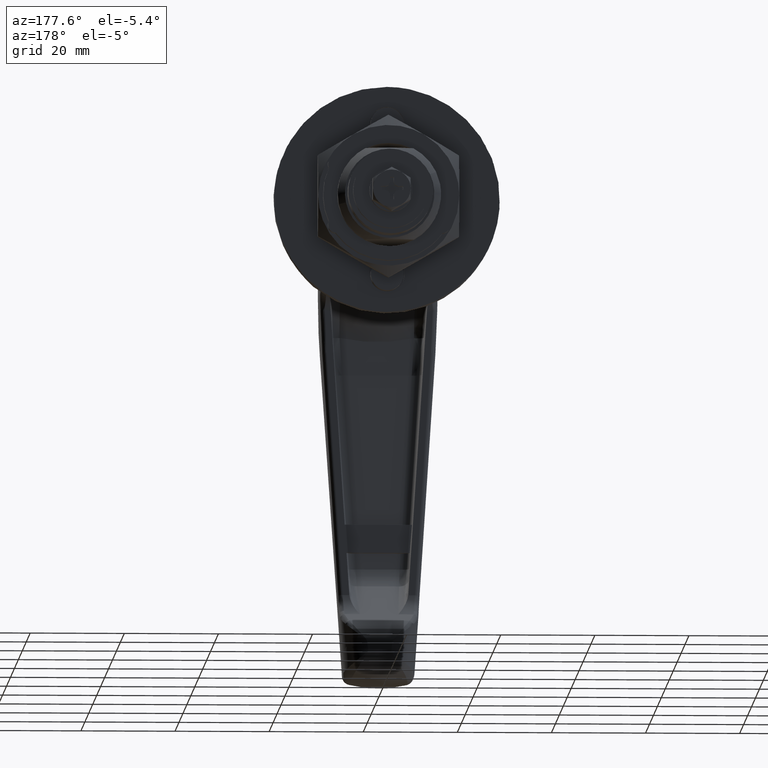
[diagram: clean part render]
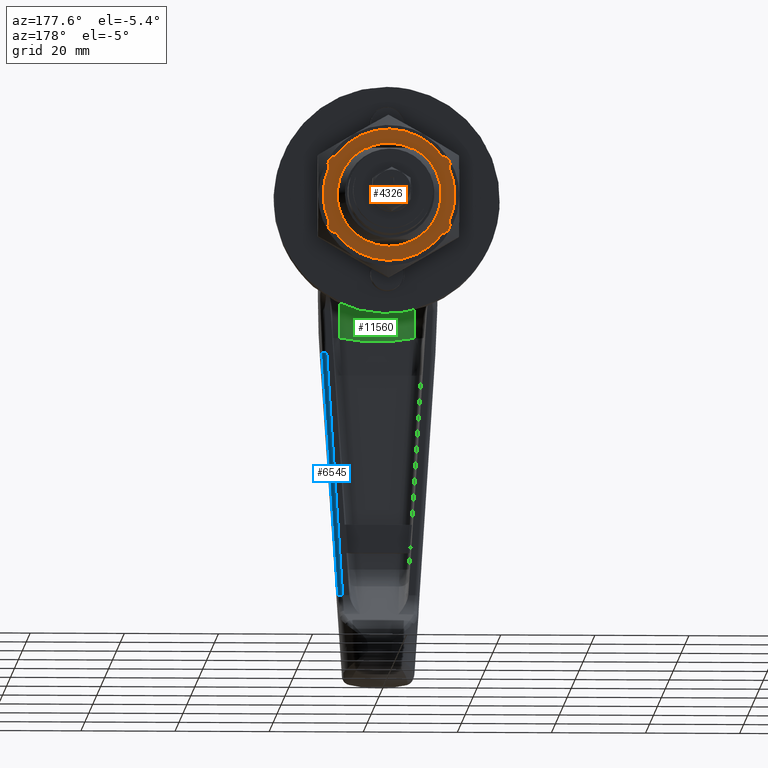
[diagram: same view with three faces highlighted in distinct colors, each labeled with its STEP entity id]
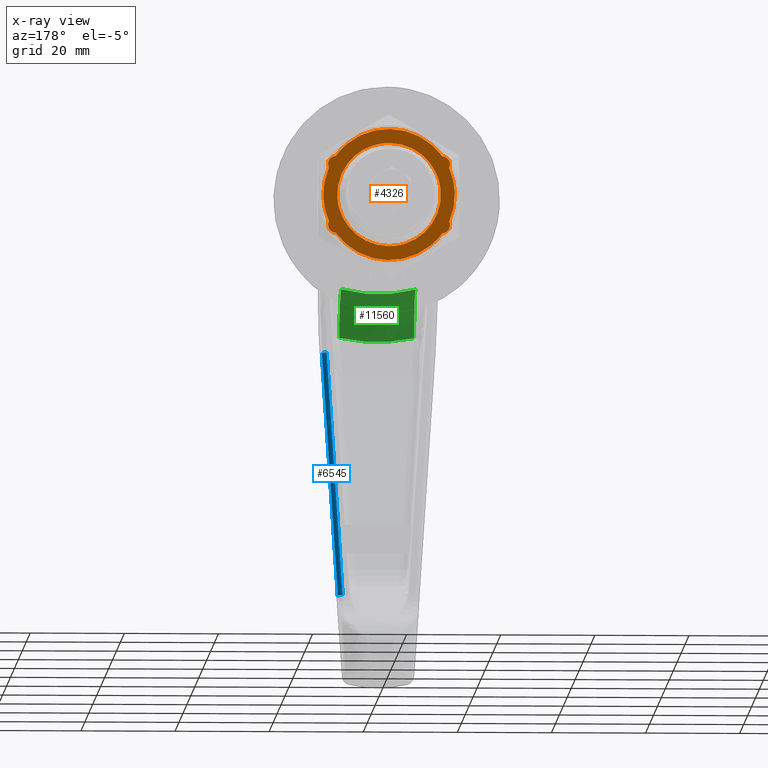
[diagram: x-ray of the same camera — body ghosted, the three highlighted faces saturated]
A machine part, auxiliary view with three faces highlighted in distinct colors.
The next image is the same camera in x-ray (body ghosted, the three faces saturated) — at least one of them is partly hidden behind the body in this view.
Their STEP definitions:

[orange] entity #4326 — the highlighted face is a freeform B-spline surface patch.
#3017=CARTESIAN_POINT('',(60.395902999999890,-10.979482782630910,-0.671533935040849));
#3018=VERTEX_POINT('',#3017);
#3024=CARTESIAN_POINT('',(60.395902999999898,0.0,-11.0));
#3025=VERTEX_POINT('',#3024);
#3026=CARTESIAN_POINT('',(60.395902999999898,0.0,-11.0));
#3027=CARTESIAN_POINT('',(60.395902999999890,-10.347766735665333,-11.000000000000002));
#3028=CARTESIAN_POINT('',(60.395902999999890,-10.979482782630910,-0.671533935040849));
#3036=(BOUNDED_CURVE()B_SPLINE_CURVE(2,(#3026,#3027,#3028),.UNSPECIFIED.,.F.,.U.)B_SPLINE_CURVE_WITH_KNOTS((3,3),(0.500000000000000,0.739332962237020),.UNSPECIFIED.)CURVE()GEOMETRIC_REPRESENTATION_ITEM()RATIONAL_B_SPLINE_CURVE((1.0,0.719603993288963,0.976072041662597))REPRESENTATION_ITEM(''));
#3037=EDGE_CURVE('',#3025,#3018,#3036,.T.);
#3039=CARTESIAN_POINT('',(60.395902999999890,10.923107007904299,1.298357921961025));
#3040=VERTEX_POINT('',#3039);
#3041=CARTESIAN_POINT('',(60.395902999999890,10.923107007904301,1.298357921961025));
#3042=CARTESIAN_POINT('',(60.395902999999898,11.0,0.651455887910068));
#3043=CARTESIAN_POINT('',(60.395902999999898,11.0,0.0));
#3044=CARTESIAN_POINT('',(60.395902999999898,11.0,-11.0));
#3045=CARTESIAN_POINT('',(60.395902999999898,0.0,-11.0));
#3053=(BOUNDED_CURVE()B_SPLINE_CURVE(2,(#3041,#3042,#3043,#3044,#3045),.UNSPECIFIED.,.F.,.U.)B_SPLINE_CURVE_WITH_KNOTS((3,2,3),(0.229562762213455,0.250000000000000,0.500000000000000),.UNSPECIFIED.)CURVE()GEOMETRIC_REPRESENTATION_ITEM()RATIONAL_B_SPLINE_CURVE((0.956027320048191,0.976056286564172,1.0,0.707106781186548,1.0))REPRESENTATION_ITEM(''));
#3054=EDGE_CURVE('',#3040,#3025,#3053,.T.);
#3102=CARTESIAN_POINT('',(60.395902999999898,0.0,11.0));
#3103=VERTEX_POINT('',#3102);
#3104=CARTESIAN_POINT('',(60.395902999999898,0.0,11.0));
#3105=CARTESIAN_POINT('',(60.395902999999898,9.769936592310934,11.000000000000002));
#3106=CARTESIAN_POINT('',(60.395902999999890,10.923107007904301,1.298357921961025));
#3114=(BOUNDED_CURVE()B_SPLINE_CURVE(2,(#3104,#3105,#3106),.UNSPECIFIED.,.F.,.U.)B_SPLINE_CURVE_WITH_KNOTS((3,3),(0.0,0.229562762213455),.UNSPECIFIED.)CURVE()GEOMETRIC_REPRESENTATION_ITEM()RATIONAL_B_SPLINE_CURVE((1.0,0.731050494622376,0.956027320048191))REPRESENTATION_ITEM(''));
#3115=EDGE_CURVE('',#3103,#3040,#3114,.T.);
#3117=CARTESIAN_POINT('',(60.395902999999890,-10.979482782630912,-0.671533935040849));
#3118=CARTESIAN_POINT('',(60.395902999999898,-10.999999999999995,-0.336080396442342));
#3119=CARTESIAN_POINT('',(60.395902999999898,-11.0,0.0));
#3120=CARTESIAN_POINT('',(60.395902999999898,-11.0,11.0));
#3121=CARTESIAN_POINT('',(60.395902999999898,0.0,11.0));
#3129=(BOUNDED_CURVE()B_SPLINE_CURVE(2,(#3117,#3118,#3119,#3120,#3121),.UNSPECIFIED.,.F.,.U.)B_SPLINE_CURVE_WITH_KNOTS((3,2,3),(0.739332962237020,0.750000000000000,1.0),.UNSPECIFIED.)CURVE()GEOMETRIC_REPRESENTATION_ITEM()RATIONAL_B_SPLINE_CURVE((0.976072041662597,0.987502787897585,1.0,0.707106781186548,1.0))REPRESENTATION_ITEM(''));
#3130=EDGE_CURVE('',#3018,#3103,#3129,.T.);
#3398=CARTESIAN_POINT('',(60.395902999999898,-12.773809982891500,5.729727047433930));
#3399=VERTEX_POINT('',#3398);
#3405=CARTESIAN_POINT('',(60.395902999999898,-11.348994046675420,8.197580640393969));
#3406=VERTEX_POINT('',#3405);
#3407=CARTESIAN_POINT('',(60.395902999999898,-11.348994046675420,8.197580640393980));
#3408=CARTESIAN_POINT('',(60.395902999999898,-12.269609458662067,8.148412596946514));
#3409=CARTESIAN_POINT('',(60.395902999999898,-12.730573186433530,7.350000000000032));
#3410=CARTESIAN_POINT('',(60.395902999999898,-13.191536914204997,6.551587403053548));
#3411=CARTESIAN_POINT('',(60.395902999999898,-12.773809982891590,5.729727047433887));
#3419=(BOUNDED_CURVE()B_SPLINE_CURVE(2,(#3407,#3408,#3409,#3410,#3411),.UNSPECIFIED.,.F.,.U.)B_SPLINE_CURVE_WITH_KNOTS((3,2,3),(0.0,0.500000000000000,1.0),.UNSPECIFIED.)CURVE()GEOMETRIC_REPRESENTATION_ITEM()RATIONAL_B_SPLINE_CURVE((1.0,0.879054921630884,1.0,0.879054921630884,1.0))REPRESENTATION_ITEM(''));
#3420=EDGE_CURVE('',#3406,#3399,#3419,.T.);
#3445=CARTESIAN_POINT('',(60.395902999999898,-12.773810244207160,-5.729727030582530));
#3446=VERTEX_POINT('',#3445);
#3452=CARTESIAN_POINT('',(60.395902999999898,-12.773809982891500,5.729727047433930));
#3453=CARTESIAN_POINT('',(60.395902999999905,-15.343894784484002,0.000000067032631));
#3454=CARTESIAN_POINT('',(60.395902999999898,-12.773810244207169,-5.729727030582525));
#3462=(BOUNDED_CURVE()B_SPLINE_CURVE(2,(#3452,#3453,#3454),.UNSPECIFIED.,.F.,.U.)CURVE()GEOMETRIC_REPRESENTATION_ITEM()QUASI_UNIFORM_CURVE()RATIONAL_B_SPLINE_CURVE((1.0,0.912415015655414,1.0))REPRESENTATION_ITEM(''));
#3463=EDGE_CURVE('',#3399,#3446,#3462,.T.);
#3484=CARTESIAN_POINT('',(60.395902999999898,-11.348994046675420,-8.197580640393980));
#3485=VERTEX_POINT('',#3484);
#3491=CARTESIAN_POINT('',(60.395902999999898,-12.773810244207160,-5.729727030582530));
#3492=CARTESIAN_POINT('',(60.395902999999898,-13.191536895913377,-6.551587490799718));
#3493=CARTESIAN_POINT('',(60.395902999999898,-12.730573160588470,-7.350000044764986));
#3494=CARTESIAN_POINT('',(60.395902999999898,-12.269609425263557,-8.148412598730255));
#3495=CARTESIAN_POINT('',(60.395902999999898,-11.348994046675420,-8.197580640393980));
#3503=(BOUNDED_CURVE()B_SPLINE_CURVE(2,(#3491,#3492,#3493,#3494,#3495),.UNSPECIFIED.,.F.,.U.)B_SPLINE_CURVE_WITH_KNOTS((3,2,3),(0.0,0.500000000000000,1.0),.UNSPECIFIED.)CURVE()GEOMETRIC_REPRESENTATION_ITEM()RATIONAL_B_SPLINE_CURVE((1.0,0.879054928878454,1.0,0.879054928878454,1.0))REPRESENTATION_ITEM(''));
#3504=EDGE_CURVE('',#3446,#3485,#3503,.T.);
#3525=CARTESIAN_POINT('',(60.395902999999898,11.348994287338440,-8.197580659314040));
#3526=VERTEX_POINT('',#3525);
#3532=CARTESIAN_POINT('',(60.395902999999898,-11.348994046675420,-8.197580640393980));
#3533=CARTESIAN_POINT('',(60.395902999999905,-7.157803374540727,-14.000000032102946));
#3534=CARTESIAN_POINT('',(60.395902999999898,0.000000062790389,-14.0));
#3535=CARTESIAN_POINT('',(60.395902999999905,7.157803500121501,-13.999999967897057));
#3536=CARTESIAN_POINT('',(60.395902999999898,11.348994287338440,-8.197580659314035));
#3544=(BOUNDED_CURVE()B_SPLINE_CURVE(2,(#3532,#3533,#3534,#3535,#3536),.UNSPECIFIED.,.F.,.U.)B_SPLINE_CURVE_WITH_KNOTS((3,2,3),(0.0,0.500000000000000,1.0),.UNSPECIFIED.)CURVE()GEOMETRIC_REPRESENTATION_ITEM()RATIONAL_B_SPLINE_CURVE((1.0,0.890376740290604,1.0,0.890376740290604,1.0))REPRESENTATION_ITEM(''));
#3545=EDGE_CURVE('',#3485,#3526,#3544,.T.);
#3566=CARTESIAN_POINT('',(60.395902999999898,12.773809982891819,-5.729727047433920));
#3567=VERTEX_POINT('',#3566);
#3573=CARTESIAN_POINT('',(60.395902999999898,11.348994287338440,-8.197580659314040));
#3574=CARTESIAN_POINT('',(60.395902999999898,12.269609613398478,-8.148412458716477));
#3575=CARTESIAN_POINT('',(60.395902999999898,12.730573246261550,-7.349999896375232));
#3576=CARTESIAN_POINT('',(60.395902999999898,13.191536879124621,-6.551587334033987));
#3577=CARTESIAN_POINT('',(60.395902999999898,12.773809982891830,-5.729727047433920));
#3585=(BOUNDED_CURVE()B_SPLINE_CURVE(2,(#3573,#3574,#3575,#3576,#3577),.UNSPECIFIED.,.F.,.U.)B_SPLINE_CURVE_WITH_KNOTS((3,2,3),(0.0,0.500000000000000,1.0),.UNSPECIFIED.)CURVE()GEOMETRIC_REPRESENTATION_ITEM()RATIONAL_B_SPLINE_CURVE((1.0,0.879054938408031,1.0,0.879054938408031,1.0))REPRESENTATION_ITEM(''));
#3586=EDGE_CURVE('',#3526,#3567,#3585,.T.);
#3607=CARTESIAN_POINT('',(60.395902999999898,12.773810244207160,5.729727030582550));
#3608=VERTEX_POINT('',#3607);
#3614=CARTESIAN_POINT('',(60.395902999999898,12.773809982891819,-5.729727047433920));
#3615=CARTESIAN_POINT('',(60.395902999999898,15.343894784483973,-0.000000067032536));
#3616=CARTESIAN_POINT('',(60.395902999999898,12.773810244207160,5.729727030582547));
#3624=(BOUNDED_CURVE()B_SPLINE_CURVE(2,(#3614,#3615,#3616),.UNSPECIFIED.,.F.,.U.)CURVE()GEOMETRIC_REPRESENTATION_ITEM()QUASI_UNIFORM_CURVE()RATIONAL_B_SPLINE_CURVE((1.0,0.912415015655416,1.0))REPRESENTATION_ITEM(''));
#3625=EDGE_CURVE('',#3567,#3608,#3624,.T.);
#3646=CARTESIAN_POINT('',(60.395902999999898,11.348994046675760,8.197580640393980));
#3647=VERTEX_POINT('',#3646);
#3653=CARTESIAN_POINT('',(60.395902999999898,12.773810244207160,5.729727030582550));
#3654=CARTESIAN_POINT('',(60.395902999999898,13.191536895913595,6.551587490799612));
#3655=CARTESIAN_POINT('',(60.395902999999898,12.730573160588740,7.350000044764898));
#3656=CARTESIAN_POINT('',(60.395902999999898,12.269609425263893,8.148412598730184));
#3657=CARTESIAN_POINT('',(60.395902999999898,11.348994046675760,8.197580640393973));
#3665=(BOUNDED_CURVE()B_SPLINE_CURVE(2,(#3653,#3654,#3655,#3656,#3657),.UNSPECIFIED.,.F.,.U.)B_SPLINE_CURVE_WITH_KNOTS((3,2,3),(0.0,0.500000000000000,1.0),.UNSPECIFIED.)CURVE()GEOMETRIC_REPRESENTATION_ITEM()RATIONAL_B_SPLINE_CURVE((1.0,0.879054928878457,1.0,0.879054928878457,1.0))REPRESENTATION_ITEM(''));
#3666=EDGE_CURVE('',#3608,#3647,#3665,.T.);
#3688=CARTESIAN_POINT('',(60.395902999999898,11.348994046675760,8.197580640393980));
#3689=CARTESIAN_POINT('',(60.395902999999905,7.157803397729381,14.000000000000005));
#3690=CARTESIAN_POINT('',(60.395902999999898,0.0,14.0));
#3691=CARTESIAN_POINT('',(60.395902999999905,-7.157803397729263,13.999999999999993));
#3692=CARTESIAN_POINT('',(60.395902999999898,-11.348994046675420,8.197580640393969));
#3700=(BOUNDED_CURVE()B_SPLINE_CURVE(2,(#3688,#3689,#3690,#3691,#3692),.UNSPECIFIED.,.F.,.U.)B_SPLINE_CURVE_WITH_KNOTS((3,2,3),(0.0,0.500000000000000,1.0),.UNSPECIFIED.)CURVE()GEOMETRIC_REPRESENTATION_ITEM()RATIONAL_B_SPLINE_CURVE((1.0,0.890376741311448,1.0,0.890376741311448,1.0))REPRESENTATION_ITEM(''));
#3701=EDGE_CURVE('',#3647,#3406,#3700,.T.);
#4305=CARTESIAN_POINT('',(60.395902999999898,-15.398600147824871,15.398599945730570));
#4306=CARTESIAN_POINT('',(60.395902999999890,-15.398600147824871,-15.398600696749090));
#4307=CARTESIAN_POINT('',(60.395902999999898,15.398600648503960,15.398599945730570));
#4308=CARTESIAN_POINT('',(60.395902999999890,15.398600648503960,-15.398600696749090));
#4309=B_SPLINE_SURFACE_WITH_KNOTS('',1,1,((#4305,#4307),(#4306,#4308)),.UNSPECIFIED.,.F.,.F.,.U.,(2,2),(2,2),(0.0,30.797200642479659),(0.0,30.797200796328831),.UNSPECIFIED.);
#4310=ORIENTED_EDGE('',*,*,#3701,.T.);
#4311=ORIENTED_EDGE('',*,*,#3420,.T.);
#4312=ORIENTED_EDGE('',*,*,#3463,.T.);
#4313=ORIENTED_EDGE('',*,*,#3504,.T.);
#4314=ORIENTED_EDGE('',*,*,#3545,.T.);
#4315=ORIENTED_EDGE('',*,*,#3586,.T.);
#4316=ORIENTED_EDGE('',*,*,#3625,.T.);
#4317=ORIENTED_EDGE('',*,*,#3666,.T.);
#4318=EDGE_LOOP('',(#4310,#4311,#4312,#4313,#4314,#4315,#4316,#4317));
#4319=FACE_OUTER_BOUND('',#4318,.T.);
#4320=ORIENTED_EDGE('',*,*,#3037,.T.);
#4321=ORIENTED_EDGE('',*,*,#3130,.T.);
#4322=ORIENTED_EDGE('',*,*,#3115,.T.);
#4323=ORIENTED_EDGE('',*,*,#3054,.T.);
#4324=EDGE_LOOP('',(#4320,#4321,#4322,#4323));
#4325=FACE_BOUND('',#4324,.T.);
#4326=ADVANCED_FACE('',(#4319,#4325),#4309,.T.);

[blue] entity #6545 — the highlighted face is a freeform B-spline surface patch.
#6452=CARTESIAN_POINT('',(-42.0,-12.073825769527300,-28.897936895261651));
#6453=VERTEX_POINT('',#6452);
#6454=CARTESIAN_POINT('',(-41.0,-11.075956640679680,-28.832689660125901));
#6455=VERTEX_POINT('',#6454);
#6456=CARTESIAN_POINT('',(-42.0,-12.073825769527300,-28.897936895261640));
#6457=CARTESIAN_POINT('',(-41.0,-12.073825769527300,-28.897936895261637));
#6458=CARTESIAN_POINT('',(-41.0,-11.075956640679660,-28.832689660125901));
#6466=(BOUNDED_CURVE()B_SPLINE_CURVE(2,(#6456,#6457,#6458),.UNSPECIFIED.,.F.,.U.)CURVE()GEOMETRIC_REPRESENTATION_ITEM()QUASI_UNIFORM_CURVE()RATIONAL_B_SPLINE_CURVE((1.0,0.707106781186548,1.0))REPRESENTATION_ITEM(''));
#6467=EDGE_CURVE('',#6453,#6455,#6466,.T.);
#6499=CARTESIAN_POINT('',(-42.026176948307992,-12.157966582344359,-27.605863837522840));
#6500=CARTESIAN_POINT('',(-42.026176948307992,-8.607578692301257,-81.904294468918820));
#6501=CARTESIAN_POINT('',(-40.925014786340313,-12.186740084798103,-27.607745238025171));
#6502=CARTESIAN_POINT('',(-40.925014786340313,-8.636352194754997,-81.906175869421133));
#6503=CARTESIAN_POINT('',(-41.002475546877214,-11.090268794031370,-27.536050746172453));
#6504=CARTESIAN_POINT('',(-41.002475546877214,-7.539880903988268,-81.834481377568423));
#6512=(BOUNDED_SURFACE()B_SPLINE_SURFACE(1,2,((#6499,#6501,#6503),(#6500,#6502,#6504)),.UNSPECIFIED.,.F.,.F.,.U.)B_SPLINE_SURFACE_WITH_KNOTS((2,2),(3,3),(0.0,54.414380665429661),(0.0,0.994518882661778),.UNSPECIFIED.)GEOMETRIC_REPRESENTATION_ITEM()RATIONAL_B_SPLINE_SURFACE(((1.0,0.670944140329031,0.996392812444628),(1.0,0.670944140329031,0.996392812444628)))REPRESENTATION_ITEM('')SURFACE());
#6513=CARTESIAN_POINT('',(-42.0,-8.694515463715909,-80.579964860897306));
#6514=VERTEX_POINT('',#6513);
#6515=CARTESIAN_POINT('',(-41.0,-7.696646334868170,-80.514717625761492));
#6516=VERTEX_POINT('',#6515);
#6517=CARTESIAN_POINT('',(-42.0,-8.694515463715906,-80.579964860897249));
#6518=CARTESIAN_POINT('',(-41.585786437626886,-8.694515463715906,-80.579964860897249));
#6519=CARTESIAN_POINT('',(-41.292893218813433,-8.402246362613111,-80.560854388179649));
#6520=CARTESIAN_POINT('',(-41.0,-8.109977261510357,-80.541743915462064));
#6521=CARTESIAN_POINT('',(-41.0,-7.696646334868270,-80.514717625761492));
#6529=(BOUNDED_CURVE()B_SPLINE_CURVE(2,(#6517,#6518,#6519,#6520,#6521),.UNSPECIFIED.,.F.,.U.)B_SPLINE_CURVE_WITH_KNOTS((3,2,3),(0.0,0.500000000000000,1.0),.UNSPECIFIED.)CURVE()GEOMETRIC_REPRESENTATION_ITEM()RATIONAL_B_SPLINE_CURVE((1.0,0.923879532511277,1.0,0.923879532511277,1.0))REPRESENTATION_ITEM(''));
#6530=EDGE_CURVE('',#6514,#6516,#6529,.T.);
#6531=ORIENTED_EDGE('',*,*,#6530,.T.);
#6532=CARTESIAN_POINT('',(-41.0,-11.075956640679680,-28.832689660125901));
#6533=CARTESIAN_POINT('',(-41.0,-7.696646334868170,-80.514717625761492));
#6534=QUASI_UNIFORM_CURVE('',1,(#6532,#6533),.UNSPECIFIED.,.F.,.U.);
#6535=EDGE_CURVE('',#6455,#6516,#6534,.T.);
#6536=ORIENTED_EDGE('',*,*,#6535,.F.);
#6537=ORIENTED_EDGE('',*,*,#6467,.F.);
#6538=CARTESIAN_POINT('',(-42.0,-8.694515463715909,-80.579964860897306));
#6539=CARTESIAN_POINT('',(-42.0,-12.073825769527300,-28.897936895261651));
#6540=QUASI_UNIFORM_CURVE('',1,(#6538,#6539),.UNSPECIFIED.,.F.,.U.);
#6541=EDGE_CURVE('',#6514,#6453,#6540,.T.);
#6542=ORIENTED_EDGE('',*,*,#6541,.F.);
#6543=EDGE_LOOP('',(#6531,#6536,#6537,#6542));
#6544=FACE_OUTER_BOUND('',#6543,.T.);
#6545=ADVANCED_FACE('',(#6544),#6512,.T.);

[green] entity #11560 — the highlighted face is a freeform B-spline surface patch.
#10691=CARTESIAN_POINT('',(-51.348844931529896,-7.917446002940620,-24.725503491098149));
#10692=VERTEX_POINT('',#10691);
#10886=CARTESIAN_POINT('',(-43.025397942350047,-7.890925464939630,-15.157765784634350));
#10887=VERTEX_POINT('',#10886);
#10940=CARTESIAN_POINT('',(-51.348844931529896,-7.917446002940610,-24.725503491098149));
#10941=CARTESIAN_POINT('',(-51.371867115000562,-7.921974244239320,-24.137399256731239));
#10942=CARTESIAN_POINT('',(-51.339982646520973,-7.925431806933676,-23.553186314366069));
#10943=CARTESIAN_POINT('',(-51.232229891961659,-7.928351631325196,-22.827731645725351));
#10944=CARTESIAN_POINT('',(-51.207191384038907,-7.928866370758878,-22.682577268527091));
#10945=CARTESIAN_POINT('',(-51.150513233765167,-7.929749328238397,-22.394448980943110));
#10946=CARTESIAN_POINT('',(-51.118909729889097,-7.930117648688036,-22.251563700680801));
#10947=CARTESIAN_POINT('',(-51.014474661388938,-7.931009396412031,-21.826383518170029));
#10948=CARTESIAN_POINT('',(-50.849605459733560,-7.931629778435530,-21.268729487006318));
#10949=CARTESIAN_POINT('',(-50.634203601687609,-7.931180731954599,-20.729324007815020));
#10950=CARTESIAN_POINT('',(-50.453449419821290,-7.930471024716591,-20.331704483673651));
#10951=CARTESIAN_POINT('',(-50.389992177140357,-7.930172337068293,-20.200322350788529));
#10952=CARTESIAN_POINT('',(-50.256555779723762,-7.929455976865894,-19.939913302839820));
#10953=CARTESIAN_POINT('',(-50.186432915046382,-7.929037354668295,-19.810638498063518));
#10954=CARTESIAN_POINT('',(-49.820786915408249,-7.926672158649224,-19.173183533578559));
#10955=CARTESIAN_POINT('',(-49.484633879477933,-7.923937115937988,-18.698096100393730));
#10956=CARTESIAN_POINT('',(-48.916247523318432,-7.919114966885816,-18.036739327665639));
#10957=CARTESIAN_POINT('',(-48.716019182321673,-7.917387926220310,-17.824891471600669));
#10958=CARTESIAN_POINT('',(-48.399003114487513,-7.914692777634095,-17.520444729542231));
#10959=CARTESIAN_POINT('',(-48.290249097858421,-7.913774579518774,-17.420937141228560));
#10960=CARTESIAN_POINT('',(-48.068887043744809,-7.911932426419858,-17.228080193331579));
#10961=CARTESIAN_POINT('',(-47.956257245912553,-7.911008240309764,-17.134677527826980));
#10962=CARTESIAN_POINT('',(-47.383494591032417,-7.906407630471803,-16.682590716918249));
#10963=CARTESIAN_POINT('',(-46.894789079873100,-7.902792316385822,-16.368269474747368));
#10964=CARTESIAN_POINT('',(-46.245150568642217,-7.898918155340240,-16.035536732091071));
#10965=CARTESIAN_POINT('',(-46.113268101390169,-7.898175595267039,-15.972024916358340));
#10966=CARTESIAN_POINT('',(-45.912447158845573,-7.897120949423259,-15.881410244284980));
#10967=CARTESIAN_POINT('',(-45.844916536611450,-7.896778845188595,-15.851944406272951));
#10968=CARTESIAN_POINT('',(-45.709476018088459,-7.896119214622962,-15.794848036079360));
#10969=CARTESIAN_POINT('',(-45.641533274104987,-7.895801478314899,-15.767199691673680));
#10970=CARTESIAN_POINT('',(-45.300717388367417,-7.894276269287010,-15.633415654661910));
#10971=CARTESIAN_POINT('',(-44.748374015778310,-7.892243102657846,-15.447826032997490));
#10972=CARTESIAN_POINT('',(-44.182220379557457,-7.891166660081848,-15.318090348146210));
#10973=CARTESIAN_POINT('',(-43.609099672860857,-7.890629173071670,-15.216531658723600));
#10974=CARTESIAN_POINT('',(-43.319056541247292,-7.890629892680259,-15.179837749924170));
#10975=CARTESIAN_POINT('',(-43.025397942350047,-7.890925464939630,-15.157765784634350));
#10976=B_SPLINE_CURVE_WITH_KNOTS('',3,(#10940,#10941,#10942,#10943,#10944,#10945,#10946,#10947,#10948,#10949,#10950,#10951,#10952,#10953,#10954,#10955,#10956,#10957,#10958,#10959,#10960,#10961,#10962,#10963,#10964,#10965,#10966,#10967,#10968,#10969,#10970,#10971,#10972,#10973,#10974,#10975),.UNSPECIFIED.,.F.,.U.,(4,2,2,2,1,2,2,2,2,2,2,2,2,2,2,2,1,2,4),(0.0,0.125000000000002,0.156250000000002,0.187500000000003,0.250000000000003,0.312500000000004,0.343750000000004,0.375000000000004,0.500000000000004,0.562500000000005,0.593750000000004,0.625000000000003,0.750000000000002,0.781250000000002,0.796875000000002,0.812500000000002,0.875000000000001,0.937500000000001,1.0),.UNSPECIFIED.);
#10977=EDGE_CURVE('',#10692,#10887,#10976,.T.);
#11176=CARTESIAN_POINT('',(-51.348844931529896,7.917446002939130,-24.725503491098451));
#11177=VERTEX_POINT('',#11176);
#11371=CARTESIAN_POINT('',(-43.025397942350097,7.890925464940040,-15.157765784634250));
#11372=VERTEX_POINT('',#11371);
#11390=CARTESIAN_POINT('',(-43.025397942350097,7.890925464940040,-15.157765784634250));
#11391=CARTESIAN_POINT('',(-43.319379630892357,7.890629567485386,-15.179862033985369));
#11392=CARTESIAN_POINT('',(-43.611174927478039,7.890627856012052,-15.216722731353361));
#11393=CARTESIAN_POINT('',(-44.045615854744490,7.891040224410647,-15.293974328872959));
#11394=CARTESIAN_POINT('',(-44.190094652772352,7.891247149718915,-15.323440518787640));
#11395=CARTESIAN_POINT('',(-44.477007234322528,7.891791609557560,-15.389530720223309));
#11396=CARTESIAN_POINT('',(-44.619018864833393,7.892128102091932,-15.426045123397209));
#11397=CARTESIAN_POINT('',(-45.040821717995883,7.893313891002581,-15.545751561583691));
#11398=CARTESIAN_POINT('',(-45.316390786031249,7.894339639532311,-15.639083083319161));
#11399=CARTESIAN_POINT('',(-45.856550450427953,7.896770824287573,-15.852111759065270));
#11400=CARTESIAN_POINT('',(-46.121140478638857,7.898176321589427,-15.971810277072480));
#11401=CARTESIAN_POINT('',(-46.509772289860621,7.900497424309273,-16.171179620071069));
#11402=CARTESIAN_POINT('',(-46.637938319139202,7.901306555054117,-16.240945353496521));
#11403=CARTESIAN_POINT('',(-46.891482229041500,7.902983016040416,-16.387173195112521));
#11404=CARTESIAN_POINT('',(-47.017001258022709,7.903851365628004,-16.463726497603020));
#11405=CARTESIAN_POINT('',(-47.388397742120887,7.906517430733926,-16.703040907562709));
#11406=CARTESIAN_POINT('',(-47.626013310830380,7.908352907382185,-16.873382875369650));
#11407=CARTESIAN_POINT('',(-48.310229487197446,7.913857103363951,-17.415383939560300));
#11408=CARTESIAN_POINT('',(-48.728451831590782,7.917522353899551,-17.817745282503878));
#11409=CARTESIAN_POINT('',(-49.204052254745960,7.921556520171563,-18.371742758454850));
#11410=CARTESIAN_POINT('',(-49.296792961175733,7.922336093362644,-18.485116724392579));
#11411=CARTESIAN_POINT('',(-49.432276086473017,7.923454523408212,-18.659103155783772));
#11412=CARTESIAN_POINT('',(-49.476880658597693,7.923819227285629,-18.717821470820340));
#11413=CARTESIAN_POINT('',(-49.564416850288723,7.924526367457606,-18.835962958021369));
#11414=CARTESIAN_POINT('',(-49.607393849936990,7.924869186639155,-18.895441127094369));
#11415=CARTESIAN_POINT('',(-49.818372728166089,7.926526665631159,-19.194843687615410));
#11416=CARTESIAN_POINT('',(-49.974684739674778,7.927671113915213,-19.440788552246641));
#11417=CARTESIAN_POINT('',(-50.407391459143227,7.930459506304518,-20.197282149003509));
#11418=CARTESIAN_POINT('',(-50.647881671011042,7.931457296980137,-20.726322612640221));
#11419=CARTESIAN_POINT('',(-50.887382686680233,7.931337178439176,-21.419098012269838));
#11420=CARTESIAN_POINT('',(-50.932305906647507,7.931244299380656,-21.559623643822079));
#11421=CARTESIAN_POINT('',(-51.015159970165719,7.930918381728177,-21.841465229347730));
#11422=CARTESIAN_POINT('',(-51.053136369305932,7.930685786920674,-21.982843614537060));
#11423=CARTESIAN_POINT('',(-51.156913765019191,7.929779033789148,-22.408324994625911));
#11424=CARTESIAN_POINT('',(-51.212585651209793,7.928895849834283,-22.693771202690510));
#11425=CARTESIAN_POINT('',(-51.339792678069713,7.925412620501666,-23.555388764631211));
#11426=CARTESIAN_POINT('',(-51.371890976170597,7.921978937501734,-24.136789720506069));
#11427=CARTESIAN_POINT('',(-51.348844931529896,7.917446002939130,-24.725503491098451));
#11428=B_SPLINE_CURVE_WITH_KNOTS('',3,(#11390,#11391,#11392,#11393,#11394,#11395,#11396,#11397,#11398,#11399,#11400,#11401,#11402,#11403,#11404,#11405,#11406,#11407,#11408,#11409,#11410,#11411,#11412,#11413,#11414,#11415,#11416,#11417,#11418,#11419,#11420,#11421,#11422,#11423,#11424,#11425,#11426,#11427),.UNSPECIFIED.,.F.,.U.,(4,2,2,2,2,2,2,2,2,2,2,2,2,2,2,2,2,2,4),(0.0,0.062499999999998,0.093749999999998,0.124999999999997,0.187499999999997,0.249999999999996,0.281249999999996,0.312499999999995,0.374999999999994,0.499999999999991,0.531249999999989,0.546874999999988,0.562499999999987,0.624999999999988,0.749999999999989,0.781249999999990,0.812499999999991,0.874999999999994,1.0),.UNSPECIFIED.);
#11429=EDGE_CURVE('',#11372,#11177,#11428,.T.);
#11472=CARTESIAN_POINT('',(-42.964475644728623,-7.982781533734719,-15.128185104537065));
#11473=CARTESIAN_POINT('',(-42.947783664571489,-6.683583991334020,-15.482988038219334));
#11474=CARTESIAN_POINT('',(-42.933668543682373,-5.368889340094383,-15.749240027812194));
#11475=CARTESIAN_POINT('',(-42.914277099108332,-2.708932114883440,-16.106797832413378));
#11476=CARTESIAN_POINT('',(-42.908995732333025,-1.363660265961837,-16.198131492609260));
#11477=CARTESIAN_POINT('',(-42.908983446076157,1.358830327596945,-16.198348323458259));
#11478=CARTESIAN_POINT('',(-42.914253315423458,2.704597246684373,-16.107222423585988));
#11479=CARTESIAN_POINT('',(-42.933641307040595,5.366222854784377,-15.749756159924225));
#11480=CARTESIAN_POINT('',(-42.947764825812115,6.682129562397440,-15.483390539716638));
#11481=CARTESIAN_POINT('',(-42.964477068454919,7.982892345278745,-15.128154842352018));
#11482=CARTESIAN_POINT('',(-42.995481930501548,-7.983088276335853,-15.130425101130847));
#11483=CARTESIAN_POINT('',(-42.978834416757671,-6.683818484311868,-15.485237491747634));
#11484=CARTESIAN_POINT('',(-42.964754242165419,-5.369066845661613,-15.751491377160418));
#11485=CARTESIAN_POINT('',(-42.945409993993337,-2.709012648050397,-16.109050168960728));
#11486=CARTESIAN_POINT('',(-42.940141008291555,-1.363700719993374,-16.200382959787738));
#11487=CARTESIAN_POINT('',(-42.940128751126160,1.358870638308879,-16.200599789426253));
#11488=CARTESIAN_POINT('',(-42.945386267040433,2.704677637392615,-16.109474758730556));
#11489=CARTESIAN_POINT('',(-42.964727072995331,5.366400247613073,-15.752007513270820));
#11490=CARTESIAN_POINT('',(-42.978815628009755,6.682363974491067,-15.485640004037839));
#11491=CARTESIAN_POINT('',(-42.995483350424017,7.983199094047052,-15.130394838138608));
#11492=CARTESIAN_POINT('',(-51.673050501377901,-8.068934739032201,-15.757321343506666));
#11493=CARTESIAN_POINT('',(-51.680595791441753,-6.749533540906459,-16.115631490233781));
#11494=CARTESIAN_POINT('',(-51.685518130727978,-5.418864154915526,-16.383083622299289));
#11495=CARTESIAN_POINT('',(-51.691939816137534,-2.731637776521739,-16.741825529353061));
#11496=CARTESIAN_POINT('',(-51.693433031658820,-1.375070211534932,-16.833151464406235));
#11497=CARTESIAN_POINT('',(-51.693436690160603,1.370199860297221,-16.833368513331937));
#11498=CARTESIAN_POINT('',(-51.691947100616026,2.727262782186041,-16.742250815495890));
#11499=CARTESIAN_POINT('',(-51.685527740604648,5.416166031128687,-16.383602172918462));
#11500=CARTESIAN_POINT('',(-51.680604395113946,6.748056464823978,-16.116037996256974));
#11501=CARTESIAN_POINT('',(-51.673049857821567,8.069047272835242,-15.757290782441782));
#11502=CARTESIAN_POINT('',(-51.370741362508937,-10.364059176059522,-24.144323555234699));
#11503=CARTESIAN_POINT('',(-51.353257951221920,-8.677363552572345,-24.627328768587674));
#11504=CARTESIAN_POINT('',(-51.338473174646474,-6.970505262653884,-24.989825743538944));
#11505=CARTESIAN_POINT('',(-51.318161550409869,-3.517068343180663,-25.476641928890505));
#11506=CARTESIAN_POINT('',(-51.312629510431435,-1.770471054248224,-25.601000938247541));
#11507=CARTESIAN_POINT('',(-51.312616641037572,1.764200234383103,-25.601296166472455));
#11508=CARTESIAN_POINT('',(-51.318136637938366,3.511440322771604,-25.477220029073980));
#11509=CARTESIAN_POINT('',(-51.338444645761356,6.967043388475936,-24.990528441570049));
#11510=CARTESIAN_POINT('',(-51.353238218908864,8.675475348474114,-24.627876699108242));
#11511=CARTESIAN_POINT('',(-51.370742853731379,10.364203038838964,-24.144282358111788));
#11512=CARTESIAN_POINT('',(-51.369660713862324,-10.372263437187696,-24.174304132809286));
#11513=CARTESIAN_POINT('',(-51.352089413563725,-8.684245561587003,-24.657714008492228));
#11514=CARTESIAN_POINT('',(-51.337235594362184,-6.976038495192211,-25.020517831623447));
#11515=CARTESIAN_POINT('',(-51.316830546564482,-3.519865218227636,-25.507746129649689));
#11516=CARTESIAN_POINT('',(-51.311273998756903,-1.771878526680976,-25.632211054908559));
#11517=CARTESIAN_POINT('',(-51.311261071728772,1.765602720454933,-25.632506533825218));
#11518=CARTESIAN_POINT('',(-51.316805521735340,3.514232731049442,-25.508324720392288));
#11519=CARTESIAN_POINT('',(-51.337206932005749,6.972573886120403,-25.021221123508674));
#11520=CARTESIAN_POINT('',(-51.352069581892827,8.682355879257834,-24.658262397161639));
#11521=CARTESIAN_POINT('',(-51.369662212591415,10.372407412901630,-24.174262901117405));
#11529=(BOUNDED_SURFACE()B_SPLINE_SURFACE(3,2,((#11472,#11482,#11492,#11502,#11512),(#11473,#11483,#11493,#11503,#11513),(#11474,#11484,#11494,#11504,#11514),(#11475,#11485,#11495,#11505,#11515),(#11476,#11486,#11496,#11506,#11516),(#11477,#11487,#11497,#11507,#11517),(#11478,#11488,#11498,#11508,#11518),(#11479,#11489,#11499,#11509,#11519),(#11480,#11490,#11500,#11510,#11520),(#11481,#11491,#11501,#11511,#11521)),.UNSPECIFIED.,.F.,.F.,.U.)B_SPLINE_SURFACE_WITH_KNOTS((4,2,2,2,4),(3,1,1,3),(0.0,5.265912914029385,10.531825828058770,15.797738742088161,21.063651656117539),(0.0,0.073034033044841,14.679765160931471,14.752829969576711),.UNSPECIFIED.)GEOMETRIC_REPRESENTATION_ITEM()RATIONAL_B_SPLINE_SURFACE(((1.002797917907922,1.001398958953961,0.720209655039679,1.001399548457237,1.002799096914474),(1.002807572240591,1.001403786120295,0.719244226761747,1.001404377657677,1.002808755315354),(1.002815113407141,1.001407556703571,0.718490114003600,1.001408149829828,1.002816299659655),(1.002825329518425,1.001412664759212,0.717468508154456,1.001413260037938,1.002826520075876),(1.002828002037556,1.001414001018778,0.717201257622400,1.001414596860586,1.002829193721172),(1.002828008333980,1.001414004166990,0.717200627983177,1.001414600010125,1.002829200020250),(1.002825341794863,1.001412670897432,0.717467280516932,1.001413266178744,1.002826532357488),(1.002815128009350,1.001407564004675,0.718488653790265,1.001408157134009,1.002816314268017),(1.002807583218670,1.001403791609335,0.719243128959486,1.001404383149030,1.002808766298059),(1.002797917084762,1.001398958542381,0.720209737355298,1.001399548045483,1.002799096090967)))REPRESENTATION_ITEM('')SURFACE());
#11530=CARTESIAN_POINT('',(-43.025397942350089,7.890925464940041,-15.157765784634259));
#11531=CARTESIAN_POINT('',(-43.009083947978198,6.604266762957146,-15.504750685121760));
#11532=CARTESIAN_POINT('',(-42.995333077923753,5.302843025398267,-15.764961458437650));
#11533=CARTESIAN_POINT('',(-42.976470460887683,2.670816816624979,-16.114073832105500));
#11534=CARTESIAN_POINT('',(-42.971354323576392,1.340131155209633,-16.202996144759538));
#11535=CARTESIAN_POINT('',(-42.971382221869412,-1.351279483442230,-16.202501439675011));
#11536=CARTESIAN_POINT('',(-42.976524486209897,-2.680843745614698,-16.113105208205159));
#11537=CARTESIAN_POINT('',(-42.995395894443178,-5.309104343698479,-15.763767360306179));
#11538=CARTESIAN_POINT('',(-43.009128694052571,-6.607795814438233,-15.503798973859769));
#11539=CARTESIAN_POINT('',(-43.025397942350047,-7.890925464939630,-15.157765784634369));
#11540=B_SPLINE_CURVE_WITH_KNOTS('',3,(#11530,#11531,#11532,#11533,#11534,#11535,#11536,#11537,#11538,#11539),.UNSPECIFIED.,.F.,.U.,(4,2,2,2,4),(0.0,0.250000000000000,0.500000000000000,0.750000000000000,1.0),.UNSPECIFIED.);
#11541=EDGE_CURVE('',#11372,#10887,#11540,.T.);
#11542=ORIENTED_EDGE('',*,*,#11541,.T.);
#11543=ORIENTED_EDGE('',*,*,#10977,.F.);
#11544=CARTESIAN_POINT('',(-51.348844931529896,-7.917446002940618,-24.725503491098149));
#11545=CARTESIAN_POINT('',(-51.337869253556512,-6.616730629748216,-25.005878404252549));
#11546=CARTESIAN_POINT('',(-51.329066461484068,-5.306585961793548,-25.216413056628220));
#11547=CARTESIAN_POINT('',(-51.317123435190837,-2.667510879736255,-25.498394750750919));
#11548=CARTESIAN_POINT('',(-51.313982445634913,-1.338581595493655,-25.569850141262862));
#11549=CARTESIAN_POINT('',(-51.313982445634913,1.338581595493939,-25.569850141262862));
#11550=CARTESIAN_POINT('',(-51.317123435190823,2.667510879734740,-25.498394750751039));
#11551=CARTESIAN_POINT('',(-51.329066461484061,5.306585961792049,-25.216413056628440));
#11552=CARTESIAN_POINT('',(-51.337869253556491,6.616730629746728,-25.005878404252819));
#11553=CARTESIAN_POINT('',(-51.348844931529882,7.917446002939135,-24.725503491098468));
#11554=B_SPLINE_CURVE_WITH_KNOTS('',3,(#11544,#11545,#11546,#11547,#11548,#11549,#11550,#11551,#11552,#11553),.UNSPECIFIED.,.F.,.U.,(4,2,2,2,4),(0.0,0.250000000000000,0.500000000000000,0.750000000000000,1.0),.UNSPECIFIED.);
#11555=EDGE_CURVE('',#10692,#11177,#11554,.T.);
#11556=ORIENTED_EDGE('',*,*,#11555,.T.);
#11557=ORIENTED_EDGE('',*,*,#11429,.F.);
#11558=EDGE_LOOP('',(#11542,#11543,#11556,#11557));
#11559=FACE_OUTER_BOUND('',#11558,.T.);
#11560=ADVANCED_FACE('',(#11559),#11529,.F.);